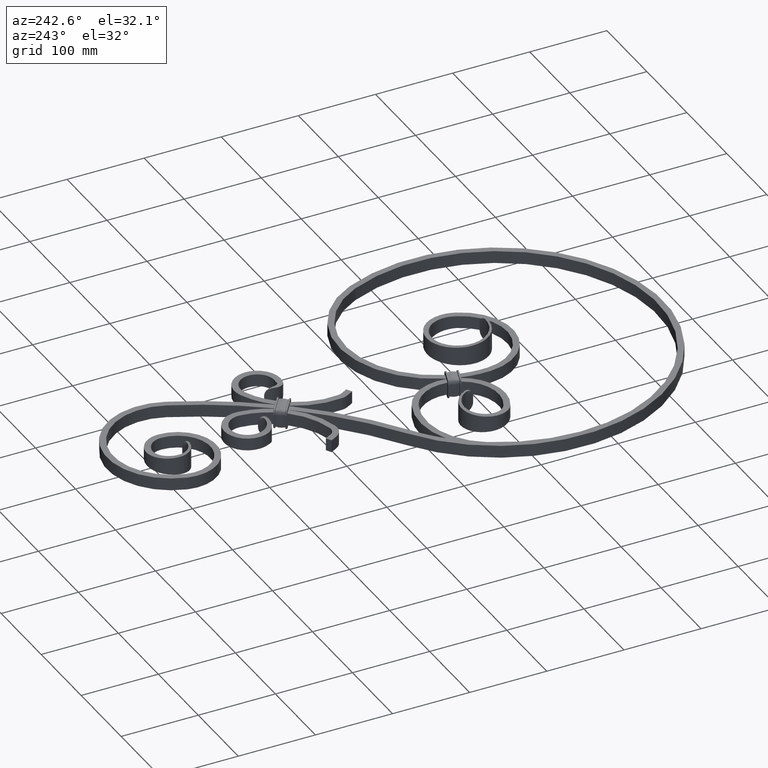
[diagram: clean part render]
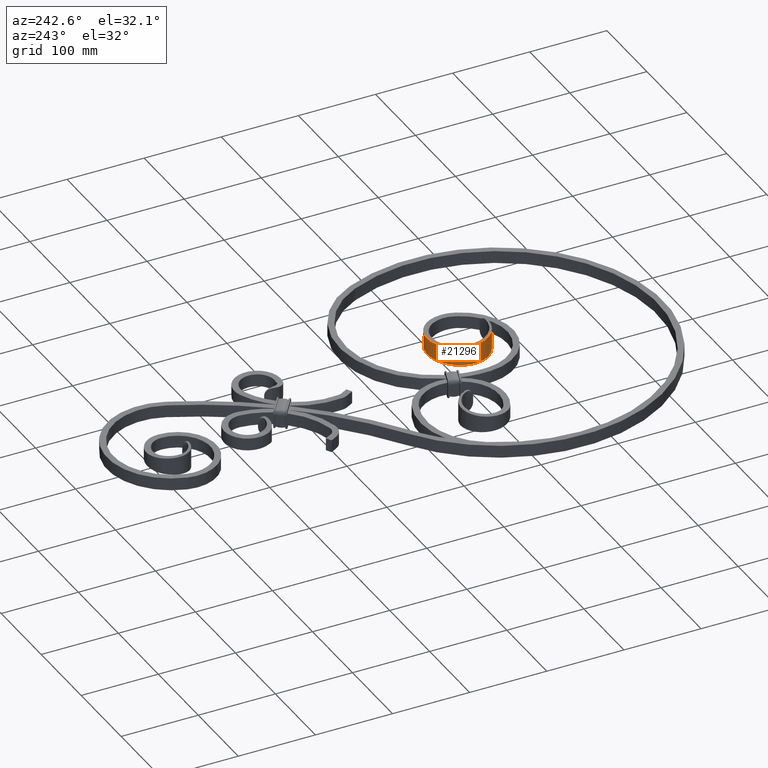
[diagram: same view with one face highlighted and labeled with its STEP entity id]
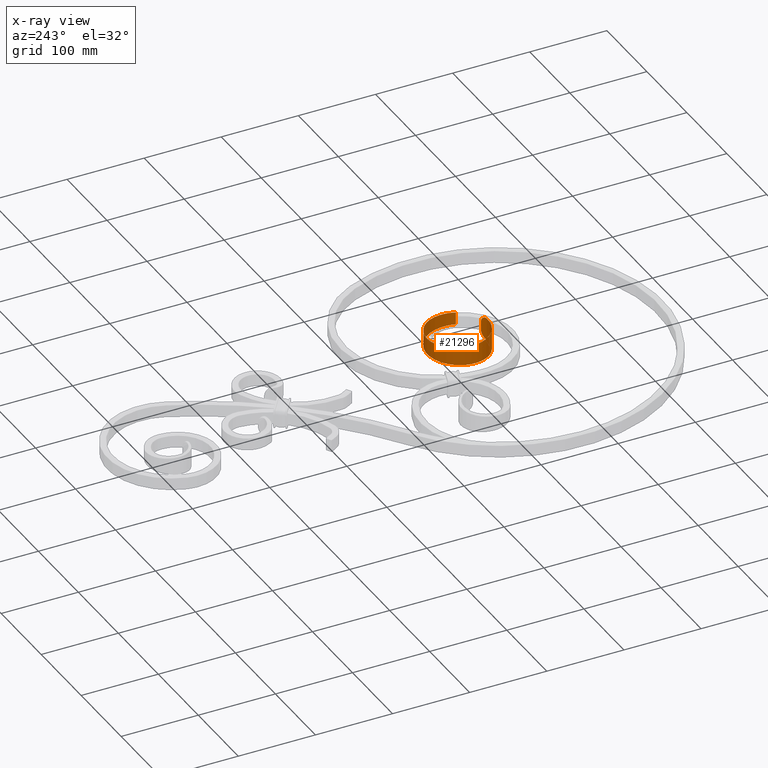
[diagram: x-ray of the same camera — body ghosted, the highlighted face saturated]
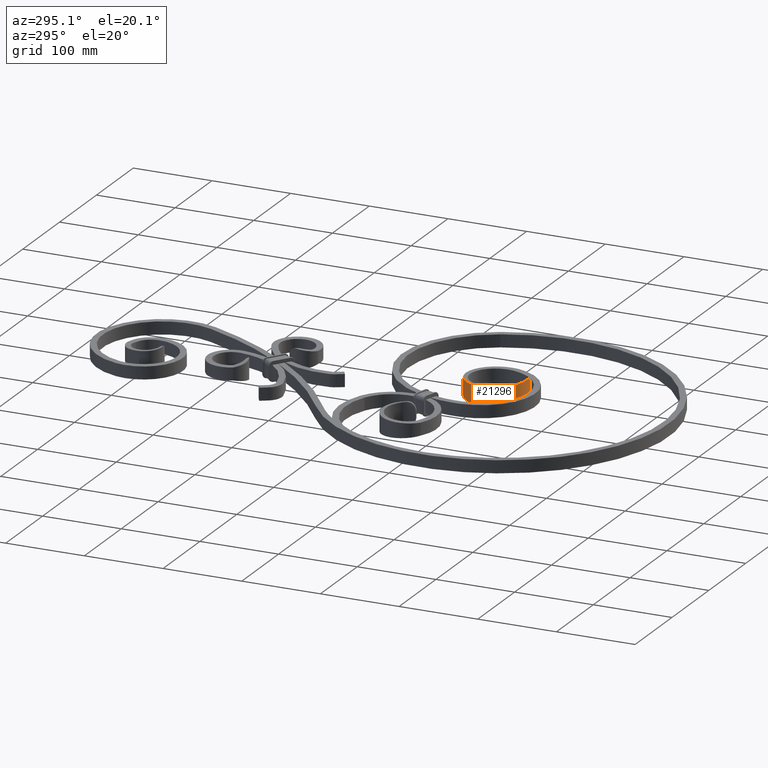
[diagram: same view with one face highlighted and labeled with its STEP entity id]
A machine part, auxiliary view. The second image highlights one B-rep face of the part: STEP entity #21296.
The next image is the same camera in x-ray: the body ghosted, the highlighted face saturated — about 0% of this face is hidden behind the body in this view.
A second angle (auxiliary view) of the same face is appended — the face is thin or edge-on in the first view.
In plain terms, the highlighted face is a freeform B-spline surface patch.
Its self-contained STEP definition (entity closure, byte-faithful):
#88 = CARTESIAN_POINT ( 'NONE',  ( 57.40479126613047356, -157.9821134198388677, -12.31989996467651416 ) ) ;
#142 = CARTESIAN_POINT ( 'NONE',  ( 71.87522628622440379, -87.64969759197546750, -9.749526374996818845 ) ) ;
#286 = B_SPLINE_SURFACE_WITH_KNOTS ( 'NONE', 1, 3, ( 
 ( #2840, #14007, #13929, #6780, #953, #17419, #1192, #21124, #4792, #10465, #21285, #19596, #1271, #17493, #6700, #14158, #19278, #3005, #21448, #14082, #8394, #15829, #15597, #4875, #17657, #23318, #3084 ),
 ( #10157, #22992, #4954, #10777, #23397, #1506, #19996, #10622, #16061, #21524, #8783, #19753, #1349, #10861, #6941, #1594, #6863, #19833, #21852, #7173, #21604, #23650, #17895, #8864, #9017, #3319, #7099 ) ),
 .UNSPECIFIED., .F., .F., .F.,
 ( 2, 2 ),
 ( 4, 1, 1, 1, 1, 1, 1, 1, 1, 1, 1, 1, 1, 1, 1, 1, 1, 1, 1, 1, 1, 1, 1, 1, 4 ),
 ( 0.000000000000000000, 1.000000000000000000 ),
 ( 0.000000000000000000, 0.04007114546810622291, 0.08028291970772548358, 0.1206308759806042352, 0.1611171016133359779, 0.2017463874121621092, 0.2425099880884301895, 0.2834118671423751512, 0.3244581403806802156, 0.3656373940934088407, 0.4069549402908954616, 0.4484182152736787552, 0.4900131391624994448, 0.5317463571055275340, 0.5736266400365688245, 0.6156372392408658856, 0.6577861393295159065, 0.7000834403844022891, 0.7425097251530715647, 0.7850743184699583432, 0.8277886477353203487, 0.8706306276067430350, 0.9136109204389514238, 0.9567416452775073799, 1.000000000000000000 ),
 .UNSPECIFIED. ) ;
#531 = CARTESIAN_POINT ( 'NONE',  ( 87.83131110507670769, -138.7288214866826479, 8.000000000000000000 ) ) ;
#664 = B_SPLINE_CURVE_WITH_KNOTS ( 'NONE', 3,
 ( #20301, #16383, #7478, #9093, #9170, #23725, #7407, #12778, #11164, #12696, #5423, #14701, #23810, #22160, #9011, #1984, #16540, #3654, #142, #18443, #21846, #11089, #13005, #12859, #16298, #1665 ),
 .UNSPECIFIED., .F., .F.,
 ( 4, 1, 1, 1, 1, 1, 1, 1, 1, 1, 1, 1, 1, 1, 1, 1, 1, 1, 1, 1, 1, 1, 1, 4 ),
 ( 0.04946963468610655196, 0.08028291970772548358, 0.1206308759806042352, 0.1611171016133359779, 0.2017463874121621092, 0.2425099880884301895, 0.2834118671423751512, 0.3244581403806802156, 0.3656373940934088407, 0.4069549402908954616, 0.4484182152736787552, 0.4900131391624994448, 0.5317463571055275340, 0.5736266400365688245, 0.6156372392408658856, 0.6577861393295159065, 0.7000834403844022891, 0.7425097251530715647, 0.7850743184699583432, 0.8277886477353203487, 0.8706306276067430350, 0.9136109204389514238, 0.9567416452775073799, 1.000000000000000000 ),
 .UNSPECIFIED. ) ;
#748 = EDGE_CURVE ( 'NONE', #3693, #16037, #21653, .T. ) ;
#953 = CARTESIAN_POINT ( 'NONE',  ( 35.71429384519681349, -158.1346597010730761, -14.12449943848099565 ) ) ;
#1094 = ORIENTED_EDGE ( 'NONE', *, *, #8722, .F. ) ;
#1192 = CARTESIAN_POINT ( 'NONE',  ( 20.81285589809827030, -149.3578096066734702, -13.54119009638673532 ) ) ;
#1271 = CARTESIAN_POINT ( 'NONE',  ( 14.65295339465406421, -100.1241639736428084, -11.79121236404169792 ) ) ;
#1349 = CARTESIAN_POINT ( 'NONE',  ( 14.65295339465406066, -100.1241639736428084, 11.79121236404170858 ) ) ;
#1447 = CARTESIAN_POINT ( 'NONE',  ( 87.83131110507670769, -138.7288214866826479, -8.000000000000000000 ) ) ;
#1506 = CARTESIAN_POINT ( 'NONE',  ( 27.78641408115771938, -154.6073104541854093, 13.83281413857975650 ) ) ;
#1594 = CARTESIAN_POINT ( 'NONE',  ( 35.80567051137102652, -83.20579819285727297, 10.91622306812608123 ) ) ;
#1665 = CARTESIAN_POINT ( 'NONE',  ( 87.83131110507670769, -138.7288214866826479, -8.000000000000000000 ) ) ;
#1773 = CARTESIAN_POINT ( 'NONE',  ( 60.47608938117673461, -157.0206523170073183, -7.315743828940995286 ) ) ;
#1984 = CARTESIAN_POINT ( 'NONE',  ( 44.88022321941031834, -81.17040810535229411, -10.62452168486911752 ) ) ;
#2415 = VECTOR ( 'NONE', #4720, 1000.000000000000000 ) ;
#2446 = CARTESIAN_POINT ( 'NONE',  ( 87.83131110507670769, -138.7288214866826479, 8.000000000000000000 ) ) ;
#2714 = B_SPLINE_CURVE_WITH_KNOTS ( 'NONE', 3,
 ( #7277, #16713, #12810, #16637, #20100, #5453, #9123, #7505, #5690, #22188, #20330, #88, #13029, #22263, #5532, #10962, #11041, #16567, #20178, #9201, #11192, #1773, #12885, #5615, #3760, #3830 ),
 .UNSPECIFIED., .F., .F.,
 ( 4, 2, 2, 2, 2, 2, 2, 2, 2, 2, 2, 2, 4 ),
 ( 0.000000000000000000, 0.002003753376619849067, 0.003005630064929773384, 0.004007506753239698134, 0.006011260129859528553, 0.007013136818169451135, 0.008015013506479373717, 0.009016890194789295432, 0.01001876688309921888, 0.01202252025971906405, 0.01302439694802899443, 0.01402627363633892135, 0.01603002701295878213 ),
 .UNSPECIFIED. ) ;
#2805 = CARTESIAN_POINT ( 'NONE',  ( 55.22931737460613988, -158.5823842069587499, 13.76105801722384570 ) ) ;
#2840 = CARTESIAN_POINT ( 'NONE',  ( 60.81353649350388935, -156.9115760450649759, -15.00000000000000000 ) ) ;
#3005 = CARTESIAN_POINT ( 'NONE',  ( 54.23703711836702723, -81.23793710699732173, -10.33280936426399599 ) ) ;
#3084 = CARTESIAN_POINT ( 'NONE',  ( 87.83131110507669348, -138.7288214866826479, -8.000000000000000000 ) ) ;
#3319 = CARTESIAN_POINT ( 'NONE',  ( 88.80848835920329520, -135.6199224942354817, 8.097164632358085257 ) ) ;
#3654 = CARTESIAN_POINT ( 'NONE',  ( 63.39706448236321989, -83.42765327736550773, -10.04123354295700032 ) ) ;
#3693 = VERTEX_POINT ( 'NONE', #15432 ) ;
#3760 = CARTESIAN_POINT ( 'NONE',  ( 60.81353649350388935, -156.9115760450650043, -5.333049314452413370 ) ) ;
#3830 = CARTESIAN_POINT ( 'NONE',  ( 60.81353649350388935, -156.9115760450650043, -4.655568429736486102 ) ) ;
#3885 = ORIENTED_EDGE ( 'NONE', *, *, #17681, .T. ) ;
#4255 = CARTESIAN_POINT ( 'NONE',  ( 71.87522628622440379, -87.64969759197546750, 9.749526374996818845 ) ) ;
#4595 = CARTESIAN_POINT ( 'NONE',  ( 60.81353649350388935, -156.9115760450650043, -4.655568429736486102 ) ) ;
#4632 = EDGE_CURVE ( 'NONE', #15093, #16037, #2714, .T. ) ;
#4720 = DIRECTION ( 'NONE',  ( 2.312964634635742464E-16, -0.000000000000000000, -1.000000000000000000 ) ) ;
#4761 = CARTESIAN_POINT ( 'NONE',  ( 58.94775456648222445, -157.5096515042349097, 10.60792500090781942 ) ) ;
#4792 = CARTESIAN_POINT ( 'NONE',  ( 11.16079009196381477, -134.7427462736206678, -12.95781233506206398 ) ) ;
#4845 = CARTESIAN_POINT ( 'NONE',  ( 54.31613085641403416, -158.7946402193240658, 14.11467085710962621 ) ) ;
#4875 = CARTESIAN_POINT ( 'NONE',  ( 90.92676275500279814, -119.6094111475499773, -8.582821727724983418 ) ) ;
#4922 = CARTESIAN_POINT ( 'NONE',  ( 53.03999675015384696, -159.0550251170852505, 14.46128943505120645 ) ) ;
#4954 = CARTESIAN_POINT ( 'NONE',  ( 52.75689624807489508, -159.5163330574060296, 14.70777448170653834 ) ) ;
#5423 = CARTESIAN_POINT ( 'NONE',  ( 10.78735355290281639, -108.3338642966863006, -12.08281134262789713 ) ) ;
#5453 = CARTESIAN_POINT ( 'NONE',  ( 53.99192554846623437, -158.8658311343184835, -14.22102829011914871 ) ) ;
#5532 = CARTESIAN_POINT ( 'NONE',  ( 58.32875636156956034, -157.7027041213615917, -11.39534511689418750 ) ) ;
#5615 = CARTESIAN_POINT ( 'NONE',  ( 60.74866206213383890, -156.9325561198835430, -6.000707309083970209 ) ) ;
#5690 = CARTESIAN_POINT ( 'NONE',  ( 55.80473986904344486, -158.4331209895797201, -13.46640871704281572 ) ) ;
#5860 = CARTESIAN_POINT ( 'NONE',  ( 20.81285589809827030, -149.3578096066734702, 13.54119009638674953 ) ) ;
#6181 = CARTESIAN_POINT ( 'NONE',  ( 89.04742673684236820, -110.1113472063922245, 8.874527441464074684 ) ) ;
#6400 = CARTESIAN_POINT ( 'NONE',  ( 60.81353649350388935, -156.9115760450649759, -15.00000000000000000 ) ) ;
#6521 = CARTESIAN_POINT ( 'NONE',  ( 58.75050488169772933, -157.5716600302211816, 10.87732090781350003 ) ) ;
#6700 = CARTESIAN_POINT ( 'NONE',  ( 27.47209647930370124, -87.21118161169886207, -11.20781033904050616 ) ) ;
#6750 = CARTESIAN_POINT ( 'NONE',  ( 53.36686603520230676, -158.9932785006795655, 14.39045218196491405 ) ) ;
#6780 = CARTESIAN_POINT ( 'NONE',  ( 44.16224750573333324, -159.7343269527997336, -14.41618806842939016 ) ) ;
#6863 = CARTESIAN_POINT ( 'NONE',  ( 44.88022321941031834, -81.17040810535229411, 10.62452168486912107 ) ) ;
#6941 = CARTESIAN_POINT ( 'NONE',  ( 27.47209647930370124, -87.21118161169886207, 11.20781033904050616 ) ) ;
#7099 = CARTESIAN_POINT ( 'NONE',  ( 87.83131110507669348, -138.7288214866826479, 8.000000000000000000 ) ) ;
#7138 = EDGE_CURVE ( 'NONE', #3693, #11200, #17285, .T. ) ;
#7173 = CARTESIAN_POINT ( 'NONE',  ( 71.87522628622440379, -87.64969759197546750, 9.749526374996818845 ) ) ;
#7277 = CARTESIAN_POINT ( 'NONE',  ( 50.71940687006645732, -159.3834281008662117, -14.64006132751594258 ) ) ;
#7407 = CARTESIAN_POINT ( 'NONE',  ( 15.16604167670660885, -142.6262958789426136, -13.24950730446733260 ) ) ;
#7478 = CARTESIAN_POINT ( 'NONE',  ( 43.50631480115410454, -159.6101224283652300, -14.39354020367714071 ) ) ;
#7505 = CARTESIAN_POINT ( 'NONE',  ( 55.22533759853171631, -158.5834285427893633, -13.76314896239061270 ) ) ;
#7809 = VERTEX_POINT ( 'NONE', #1447 ) ;
#7852 = CARTESIAN_POINT ( 'NONE',  ( 44.88022321941031834, -81.17040810535229411, 10.62452168486912107 ) ) ;
#7854 = VERTEX_POINT ( 'NONE', #531 ) ;
#8011 = CARTESIAN_POINT ( 'NONE',  ( 8.884929714837371151, -117.1450486132477806, 12.37451212653719068 ) ) ;
#8394 = CARTESIAN_POINT ( 'NONE',  ( 79.22540442669328797, -93.71424142530611334, -9.457808160962921207 ) ) ;
#8437 = CARTESIAN_POINT ( 'NONE',  ( 56.91516325264803555, -158.1271202140490857, 12.74110725779383380 ) ) ;
#8722 = EDGE_CURVE ( 'NONE', #15093, #7809, #664, .T. ) ;
#8783 = CARTESIAN_POINT ( 'NONE',  ( 8.884929714837371151, -117.1450486132477806, 12.37451212653719068 ) ) ;
#8864 = CARTESIAN_POINT ( 'NONE',  ( 90.92676275500279814, -119.6094111475499773, 8.582821727724983418 ) ) ;
#9011 = CARTESIAN_POINT ( 'NONE',  ( 35.80567051137102652, -83.20579819285727297, -10.91622306812607768 ) ) ;
#9017 = CARTESIAN_POINT ( 'NONE',  ( 90.75995979387847967, -129.4112970361311170, 8.291207221567750807 ) ) ;
#9093 = CARTESIAN_POINT ( 'NONE',  ( 35.71429384519681349, -158.1346597010730761, -14.12449943848099565 ) ) ;
#9123 = CARTESIAN_POINT ( 'NONE',  ( 54.30778540219843364, -158.7965193276901914, -14.11762286255113708 ) ) ;
#9170 = CARTESIAN_POINT ( 'NONE',  ( 27.78641408115771227, -154.6073104541854093, -13.83281413857975117 ) ) ;
#9201 = CARTESIAN_POINT ( 'NONE',  ( 60.17345113916341859, -157.1183332697751780, -8.275429288781079862 ) ) ;
#9220 = CARTESIAN_POINT ( 'NONE',  ( 48.56428608921258672, -159.6062427852546364, 14.56548785471333396 ) ) ;
#9243 = EDGE_LOOP ( 'NONE', ( #15366, #17316, #10358, #3885, #1094, #17967 ) ) ;
#9244 = EDGE_CURVE ( 'NONE', #11200, #7854, #21146, .T. ) ;
#9698 = CARTESIAN_POINT ( 'NONE',  ( 90.92676275500279814, -119.6094111475499773, 8.582821727724983418 ) ) ;
#9774 = CARTESIAN_POINT ( 'NONE',  ( 90.75995979387847967, -129.4112970361311170, 8.291207221567750807 ) ) ;
#9841 = DIRECTION ( 'NONE',  ( 0.000000000000000000, -0.000000000000000000, -1.000000000000000000 ) ) ;
#10157 = CARTESIAN_POINT ( 'NONE',  ( 60.81353649350388224, -156.9115760450649759, 15.00000000000000711 ) ) ;
#10283 = CARTESIAN_POINT ( 'NONE',  ( 58.33293417938361358, -157.7014178892954988, 11.39065150122438297 ) ) ;
#10358 = ORIENTED_EDGE ( 'NONE', *, *, #9244, .T. ) ;
#10465 = CARTESIAN_POINT ( 'NONE',  ( 9.021698478008120858, -126.1011848609241497, -12.66620145793779528 ) ) ;
#10622 = CARTESIAN_POINT ( 'NONE',  ( 15.16604167670660885, -142.6262958789425852, 13.24950730446733616 ) ) ;
#10777 = CARTESIAN_POINT ( 'NONE',  ( 44.16224750573334035, -159.7343269527997336, 14.41618806842939193 ) ) ;
#10861 = CARTESIAN_POINT ( 'NONE',  ( 20.30342638680384937, -92.95454090001364023, 11.49951696646553856 ) ) ;
#10962 = CARTESIAN_POINT ( 'NONE',  ( 58.74433158024036317, -157.5735900578542896, -10.88534130781871667 ) ) ;
#11041 = CARTESIAN_POINT ( 'NONE',  ( 58.94132148589888232, -157.5116792890190140, -10.61714222308266287 ) ) ;
#11089 = CARTESIAN_POINT ( 'NONE',  ( 89.04742673684236820, -110.1113472063922245, -8.874527441464071131 ) ) ;
#11140 = CARTESIAN_POINT ( 'NONE',  ( 27.78641408115771938, -154.6073104541854093, 13.83281413857975650 ) ) ;
#11164 = CARTESIAN_POINT ( 'NONE',  ( 9.021698478008120858, -126.1011848609241497, -12.66620145793778995 ) ) ;
#11192 = CARTESIAN_POINT ( 'NONE',  ( 60.28418827746445174, -157.0826069349138550, -7.960589299069198432 ) ) ;
#11200 = VERTEX_POINT ( 'NONE', #15233 ) ;
#11333 = LINE ( 'NONE', #19120, #23718 ) ;
#11367 = CARTESIAN_POINT ( 'NONE',  ( 88.80848835920329520, -135.6199224942354817, 8.097164632358085257 ) ) ;
#11452 = CARTESIAN_POINT ( 'NONE',  ( 9.021698478008120858, -126.1011848609241497, 12.66620145793779528 ) ) ;
#11614 = CARTESIAN_POINT ( 'NONE',  ( 35.80567051137102652, -83.20579819285727297, 10.91622306812608123 ) ) ;
#11797 = CARTESIAN_POINT ( 'NONE',  ( 60.81353649350388935, -156.9115760450650043, 4.655568429736508307 ) ) ;
#12031 = CARTESIAN_POINT ( 'NONE',  ( 51.39298784190498992, -159.3137875809548518, 14.66336919625816293 ) ) ;
#12269 = CARTESIAN_POINT ( 'NONE',  ( 59.79998323516775116, -157.2385456223437359, 9.194490542177410575 ) ) ;
#12696 = CARTESIAN_POINT ( 'NONE',  ( 8.884929714837371151, -117.1450486132477806, -12.37451212653718891 ) ) ;
#12778 = CARTESIAN_POINT ( 'NONE',  ( 11.16079009196381477, -134.7427462736206678, -12.95781233506208707 ) ) ;
#12810 = CARTESIAN_POINT ( 'NONE',  ( 52.05480840006176635, -159.2234298023755912, -14.62214311586074267 ) ) ;
#12859 = CARTESIAN_POINT ( 'NONE',  ( 90.75995979387847967, -129.4112970361311170, -8.291207221567749031 ) ) ;
#12885 = CARTESIAN_POINT ( 'NONE',  ( 60.55647934438959368, -156.9946723758822600, -6.987831040323073672 ) ) ;
#13005 = CARTESIAN_POINT ( 'NONE',  ( 90.92676275500279814, -119.6094111475499773, -8.582821727724985195 ) ) ;
#13029 = CARTESIAN_POINT ( 'NONE',  ( 57.64740362017271735, -157.9098615374091992, -12.10063930054155712 ) ) ;
#13074 = CARTESIAN_POINT ( 'NONE',  ( 60.28795485705487778, -157.0813915358625934, 7.949177493997454214 ) ) ;
#13212 = CARTESIAN_POINT ( 'NONE',  ( 54.23703711836702723, -81.23793710699732173, 10.33280936426399954 ) ) ;
#13377 = CARTESIAN_POINT ( 'NONE',  ( 11.16079009196381477, -134.7427462736206678, 12.95781233506209063 ) ) ;
#13899 = CARTESIAN_POINT ( 'NONE',  ( 52.05741655499788578, -159.2231510178939402, 14.62221403840911016 ) ) ;
#13929 = CARTESIAN_POINT ( 'NONE',  ( 52.75689624807490219, -159.5163330574060296, -14.70777448170650992 ) ) ;
#14007 = CARTESIAN_POINT ( 'NONE',  ( 58.13112769586891915, -157.7788138653920385, -14.90270531173231383 ) ) ;
#14082 = CARTESIAN_POINT ( 'NONE',  ( 71.87522628622440379, -87.64969759197546750, -9.749526374996818845 ) ) ;
#14158 = CARTESIAN_POINT ( 'NONE',  ( 35.80567051137102652, -83.20579819285727297, -10.91622306812607590 ) ) ;
#14355 = CARTESIAN_POINT ( 'NONE',  ( 50.71940687006645732, -159.3834281008662117, -14.64006132751594258 ) ) ;
#14701 = CARTESIAN_POINT ( 'NONE',  ( 14.65295339465406421, -100.1241639736428084, -11.79121236404170503 ) ) ;
#15093 = VERTEX_POINT ( 'NONE', #14355 ) ;
#15223 = CARTESIAN_POINT ( 'NONE',  ( 85.05347883020334621, -101.3275498460778152, 9.166244759842253842 ) ) ;
#15233 = CARTESIAN_POINT ( 'NONE',  ( 50.71940687006656390, -159.3834281008661833, 14.64006132751595501 ) ) ;
#15299 = CARTESIAN_POINT ( 'NONE',  ( 10.78735355290281817, -108.3338642966863006, 12.08281134262790246 ) ) ;
#15366 = ORIENTED_EDGE ( 'NONE', *, *, #748, .F. ) ;
#15432 = CARTESIAN_POINT ( 'NONE',  ( 60.81353649350388935, -156.9115760450650043, 4.655568429736508307 ) ) ;
#15597 = CARTESIAN_POINT ( 'NONE',  ( 89.04742673684236820, -110.1113472063922245, -8.874527441464074684 ) ) ;
#15801 = CARTESIAN_POINT ( 'NONE',  ( 58.11303156977978546, -157.7690441782612254, 11.63445718727177436 ) ) ;
#15829 = CARTESIAN_POINT ( 'NONE',  ( 85.05347883020334621, -101.3275498460778152, -9.166244759842252066 ) ) ;
#16037 = VERTEX_POINT ( 'NONE', #4595 ) ;
#16061 = CARTESIAN_POINT ( 'NONE',  ( 11.16079009196381477, -134.7427462736206678, 12.95781233506209063 ) ) ;
#16298 = CARTESIAN_POINT ( 'NONE',  ( 88.80848835920329520, -135.6199224942354817, -8.097164632358085257 ) ) ;
#16383 = CARTESIAN_POINT ( 'NONE',  ( 48.56428608921252277, -159.6062427852546364, -14.56548785471332330 ) ) ;
#16540 = CARTESIAN_POINT ( 'NONE',  ( 54.23703711836702723, -81.23793710699732173, -10.33280936426400309 ) ) ;
#16567 = CARTESIAN_POINT ( 'NONE',  ( 59.49096303104830952, -157.3378004156325005, -9.783656953478562457 ) ) ;
#16637 = CARTESIAN_POINT ( 'NONE',  ( 53.03053496353366825, -159.0567264563941023, -14.46308400392486959 ) ) ;
#16713 = CARTESIAN_POINT ( 'NONE',  ( 51.39283328668325623, -159.3138035601859599, -14.66336384819612881 ) ) ;
#16816 = CARTESIAN_POINT ( 'NONE',  ( 20.30342638680384937, -92.95454090001364023, 11.49951696646553856 ) ) ;
#17285 = B_SPLINE_CURVE_WITH_KNOTS ( 'NONE', 3,
 ( #11797, #17312, #19163, #22880, #21093, #13074, #23208, #12269, #21491, #4761, #6521, #10283, #15801, #19406, #8437, #21418, #2805, #4845, #17779, #6750, #4922, #13899, #12031, #19482 ),
 .UNSPECIFIED., .F., .F.,
 ( 4, 2, 2, 2, 2, 2, 2, 2, 2, 2, 2, 4 ),
 ( 0.000000000000000000, 0.002003754207944283272, 0.003005631311916420571, 0.004007508415888557871, 0.006011262623832823795, 0.007013139727804948952, 0.008015016831777072373, 0.01001877103972132442, 0.01202252524766557473, 0.01302440235163770249, 0.01402627945560982851, 0.01603003366355406495 ),
 .UNSPECIFIED. ) ;
#17312 = CARTESIAN_POINT ( 'NONE',  ( 60.81353649350388935, -156.9115760450649759, 5.333100762414355600 ) ) ;
#17316 = ORIENTED_EDGE ( 'NONE', *, *, #7138, .T. ) ;
#17419 = CARTESIAN_POINT ( 'NONE',  ( 27.78641408115771227, -154.6073104541854093, -13.83281413857975117 ) ) ;
#17493 = CARTESIAN_POINT ( 'NONE',  ( 20.30342638680384937, -92.95454090001364023, -11.49951696646553501 ) ) ;
#17657 = CARTESIAN_POINT ( 'NONE',  ( 90.75995979387847967, -129.4112970361311170, -8.291207221567750807 ) ) ;
#17681 = EDGE_CURVE ( 'NONE', #7854, #7809, #11333, .T. ) ;
#17779 = CARTESIAN_POINT ( 'NONE',  ( 54.00466452190867983, -158.8630966966101994, 14.21707872858319455 ) ) ;
#17895 = CARTESIAN_POINT ( 'NONE',  ( 89.04742673684236820, -110.1113472063922245, 8.874527441464074684 ) ) ;
#17967 = ORIENTED_EDGE ( 'NONE', *, *, #4632, .T. ) ;
#18443 = CARTESIAN_POINT ( 'NONE',  ( 79.22540442669328797, -93.71424142530611334, -9.457808160962922983 ) ) ;
#18649 = CARTESIAN_POINT ( 'NONE',  ( 14.65295339465406066, -100.1241639736428084, 11.79121236404170858 ) ) ;
#18897 = CARTESIAN_POINT ( 'NONE',  ( 79.22540442669328797, -93.71424142530611334, 9.457808160962926536 ) ) ;
#19120 = CARTESIAN_POINT ( 'NONE',  ( 87.83131110507669348, -138.7288214866826479, -8.000000000000000000 ) ) ;
#19163 = CARTESIAN_POINT ( 'NONE',  ( 60.74865810167716518, -156.9325572834542584, 5.999022140059445896 ) ) ;
#19278 = CARTESIAN_POINT ( 'NONE',  ( 44.88022321941031834, -81.17040810535229411, -10.62452168486911930 ) ) ;
#19406 = CARTESIAN_POINT ( 'NONE',  ( 57.42040879456782676, -157.9785287856439879, 12.32828836968683106 ) ) ;
#19482 = CARTESIAN_POINT ( 'NONE',  ( 50.71940687006656390, -159.3834281008661833, 14.64006132751595501 ) ) ;
#19596 = CARTESIAN_POINT ( 'NONE',  ( 10.78735355290281284, -108.3338642966863006, -12.08281134262790246 ) ) ;
#19753 = CARTESIAN_POINT ( 'NONE',  ( 10.78735355290281817, -108.3338642966863006, 12.08281134262790246 ) ) ;
#19833 = CARTESIAN_POINT ( 'NONE',  ( 54.23703711836702723, -81.23793710699732173, 10.33280936426399954 ) ) ;
#19996 = CARTESIAN_POINT ( 'NONE',  ( 20.81285589809827030, -149.3578096066734702, 13.54119009638674953 ) ) ;
#20100 = CARTESIAN_POINT ( 'NONE',  ( 53.35289318944666803, -158.9959905131601943, -14.39374293886464073 ) ) ;
#20178 = CARTESIAN_POINT ( 'NONE',  ( 59.79814849899769769, -157.2391338985668199, -9.197883990575151714 ) ) ;
#20195 = CARTESIAN_POINT ( 'NONE',  ( 50.71940687006656390, -159.3834281008661833, 14.64006132751595501 ) ) ;
#20301 = CARTESIAN_POINT ( 'NONE',  ( 50.71940687006645732, -159.3834281008662117, -14.64006132751594258 ) ) ;
#20330 = CARTESIAN_POINT ( 'NONE',  ( 56.89544484749933417, -158.1302635475771581, -12.73415381933254231 ) ) ;
#20586 = CARTESIAN_POINT ( 'NONE',  ( 63.39706448236321989, -83.42765327736550773, 10.04123354295700565 ) ) ;
#21012 = FACE_OUTER_BOUND ( 'NONE', #9243, .T. ) ;
#21093 = CARTESIAN_POINT ( 'NONE',  ( 60.47867394550004150, -157.0198172495664437, 7.305771792722003610 ) ) ;
#21124 = CARTESIAN_POINT ( 'NONE',  ( 15.16604167670660885, -142.6262958789426136, -13.24950730446733793 ) ) ;
#21146 = B_SPLINE_CURVE_WITH_KNOTS ( 'NONE', 3,
 ( #20195, #9220, #22056, #22130, #11140, #5860, #22686, #13377, #11452, #8011, #15299, #18649, #16816, #22525, #11614, #7852, #13212, #20586, #4255, #18897, #15223, #6181, #9698, #9774, #11367, #2446 ),
 .UNSPECIFIED., .F., .F.,
 ( 4, 1, 1, 1, 1, 1, 1, 1, 1, 1, 1, 1, 1, 1, 1, 1, 1, 1, 1, 1, 1, 1, 1, 4 ),
 ( 0.04946963468610603848, 0.08028291970772548358, 0.1206308759806042352, 0.1611171016133359779, 0.2017463874121621092, 0.2425099880884301895, 0.2834118671423750957, 0.3244581403806802156, 0.3656373940934088407, 0.4069549402908954616, 0.4484182152736787552, 0.4900131391624994448, 0.5317463571055275340, 0.5736266400365688245, 0.6156372392408658856, 0.6577861393295159065, 0.7000834403844022891, 0.7425097251530715647, 0.7850743184699583432, 0.8277886477353202377, 0.8706306276067430350, 0.9136109204389514238, 0.9567416452775073799, 1.000000000000000000 ),
 .UNSPECIFIED. ) ;
#21285 = CARTESIAN_POINT ( 'NONE',  ( 8.884929714837372927, -117.1450486132477806, -12.37451212653718535 ) ) ;
#21296 = ADVANCED_FACE ( 'NONE', ( #21012 ), #286, .T. ) ;
#21418 = CARTESIAN_POINT ( 'NONE',  ( 55.81089453805215328, -158.4315371470569289, 13.46335636205708042 ) ) ;
#21448 = CARTESIAN_POINT ( 'NONE',  ( 63.39706448236321989, -83.42765327736550773, -10.04123354295700388 ) ) ;
#21491 = CARTESIAN_POINT ( 'NONE',  ( 59.49302078755682999, -157.3371345053323864, 9.779438150124232010 ) ) ;
#21524 = CARTESIAN_POINT ( 'NONE',  ( 9.021698478008120858, -126.1011848609241497, 12.66620145793779528 ) ) ;
#21604 = CARTESIAN_POINT ( 'NONE',  ( 79.22540442669328797, -93.71424142530611334, 9.457808160962926536 ) ) ;
#21653 = LINE ( 'NONE', #6400, #2415 ) ;
#21846 = CARTESIAN_POINT ( 'NONE',  ( 85.05347883020334621, -101.3275498460778152, -9.166244759842253842 ) ) ;
#21852 = CARTESIAN_POINT ( 'NONE',  ( 63.39706448236321989, -83.42765327736550773, 10.04123354295700565 ) ) ;
#22056 = CARTESIAN_POINT ( 'NONE',  ( 43.50631480115414718, -159.6101224283652300, 14.39354020367714959 ) ) ;
#22130 = CARTESIAN_POINT ( 'NONE',  ( 35.71429384519679928, -158.1346597010730761, 14.12449943848099920 ) ) ;
#22160 = CARTESIAN_POINT ( 'NONE',  ( 27.47209647930370124, -87.21118161169886207, -11.20781033904050439 ) ) ;
#22188 = CARTESIAN_POINT ( 'NONE',  ( 56.62766891059295205, -158.2064295446802191, -12.92961729521235803 ) ) ;
#22263 = CARTESIAN_POINT ( 'NONE',  ( 58.10938699635035931, -157.7701586689066460, -11.63836215644806771 ) ) ;
#22525 = CARTESIAN_POINT ( 'NONE',  ( 27.47209647930370124, -87.21118161169886207, 11.20781033904050616 ) ) ;
#22686 = CARTESIAN_POINT ( 'NONE',  ( 15.16604167670660885, -142.6262958789425852, 13.24950730446733616 ) ) ;
#22880 = CARTESIAN_POINT ( 'NONE',  ( 60.55793643177783281, -156.9942014815857760, 6.981189929565274177 ) ) ;
#22992 = CARTESIAN_POINT ( 'NONE',  ( 58.13112769586890494, -157.7788138653920385, 14.90270531173232804 ) ) ;
#23208 = CARTESIAN_POINT ( 'NONE',  ( 60.17620640384414088, -157.1174452615367159, 8.268090859669882775 ) ) ;
#23318 = CARTESIAN_POINT ( 'NONE',  ( 88.80848835920329520, -135.6199224942354817, -8.097164632358085257 ) ) ;
#23397 = CARTESIAN_POINT ( 'NONE',  ( 35.71429384519679928, -158.1346597010730761, 14.12449943848099920 ) ) ;
#23650 = CARTESIAN_POINT ( 'NONE',  ( 85.05347883020334621, -101.3275498460778152, 9.166244759842253842 ) ) ;
#23718 = VECTOR ( 'NONE', #9841, 1000.000000000000000 ) ;
#23725 = CARTESIAN_POINT ( 'NONE',  ( 20.81285589809827030, -149.3578096066734702, -13.54119009638673710 ) ) ;
#23810 = CARTESIAN_POINT ( 'NONE',  ( 20.30342638680384937, -92.95454090001364023, -11.49951696646553501 ) ) ;